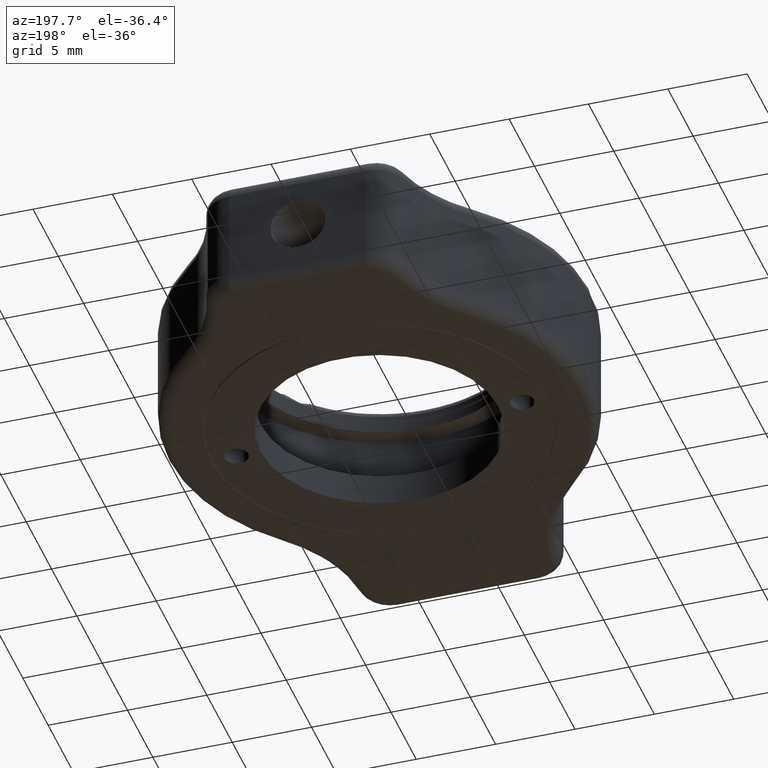
[diagram: clean part render]
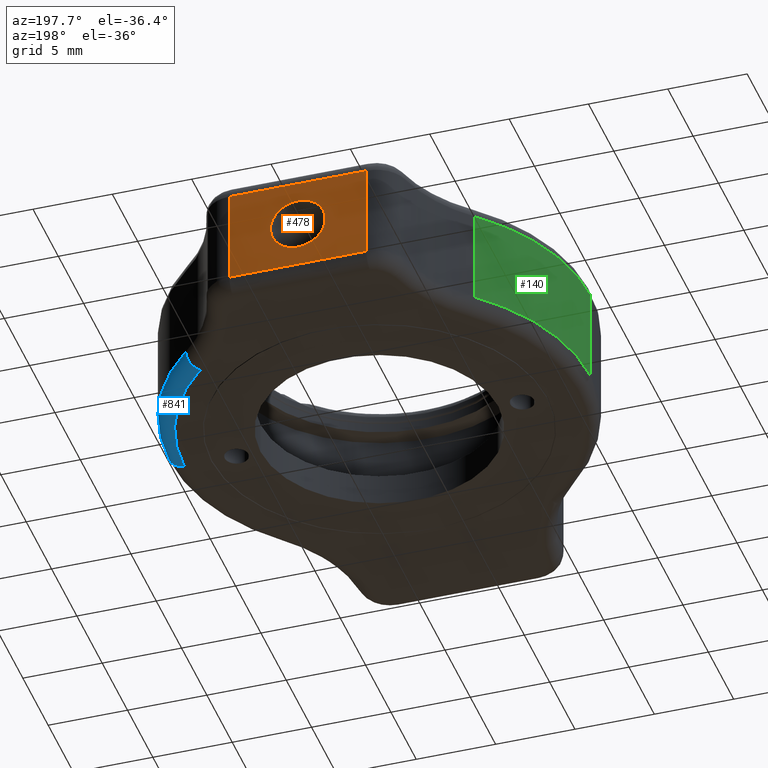
[diagram: same view with three faces highlighted in distinct colors, each labeled with its STEP entity id]
A machine part, auxiliary view with three faces highlighted in distinct colors.
Their STEP definitions:

[orange] entity #478 — the highlighted planar face has unit normal (0, 1, 0).
#18 = ORIENTED_EDGE ( 'NONE', *, *, #835, .T. ) ;
#37 = ORIENTED_EDGE ( 'NONE', *, *, #761, .F. ) ;
#64 = CIRCLE ( 'NONE', #2187, 1.727199999999998100 ) ;
#134 = LINE ( 'NONE', #1105, #2268 ) ;
#135 = CARTESIAN_POINT ( 'NONE',  ( -2.087185713595170800, 17.73337179795378300, 37.00000000000000700 ) ) ;
#171 = LINE ( 'NONE', #1016, #226 ) ;
#175 = DIRECTION ( 'NONE',  ( 0.0000000000000000000, 0.0000000000000000000, 1.000000000000000000 ) ) ;
#226 = VECTOR ( 'NONE', #2249, 1000.000000000000000 ) ;
#264 = DIRECTION ( 'NONE',  ( 0.0000000000000000000, 1.000000000000000000, 0.0000000000000000000 ) ) ;
#295 = CARTESIAN_POINT ( 'NONE',  ( 2.223772548633339100, 17.73337179795378300, 32.27280000000000400 ) ) ;
#345 = DIRECTION ( 'NONE',  ( -0.0000000000000000000, 1.000000000000000000, -0.0000000000000000000 ) ) ;
#478 = ADVANCED_FACE ( 'NONE', ( #592, #1842 ), #1884, .T. ) ;
#484 = CARTESIAN_POINT ( 'NONE',  ( 2.223772548633339100, 17.73337179795378300, 35.72720000000000300 ) ) ;
#542 = VERTEX_POINT ( 'NONE', #135 ) ;
#571 = ORIENTED_EDGE ( 'NONE', *, *, #575, .F. ) ;
#575 = EDGE_CURVE ( 'NONE', #542, #1728, #171, .T. ) ;
#592 = FACE_BOUND ( 'NONE', #1140, .T. ) ;
#641 = LINE ( 'NONE', #1273, #1055 ) ;
#761 = EDGE_CURVE ( 'NONE', #1092, #1988, #64, .T. ) ;
#762 = ORIENTED_EDGE ( 'NONE', *, *, #1751, .T. ) ;
#772 = CARTESIAN_POINT ( 'NONE',  ( 2.223772548633339100, 17.73337179795378300, 34.00000000000000000 ) ) ;
#835 = EDGE_CURVE ( 'NONE', #1907, #2287, #641, .T. ) ;
#969 = LINE ( 'NONE', #2160, #1802 ) ;
#987 = ORIENTED_EDGE ( 'NONE', *, *, #1339, .F. ) ;
#1005 = DIRECTION ( 'NONE',  ( 0.0000000000000000000, -0.0000000000000000000, 1.000000000000000000 ) ) ;
#1016 = CARTESIAN_POINT ( 'NONE',  ( -2.087185713595170800, 17.73337179795378300, 38.00000000000000700 ) ) ;
#1055 = VECTOR ( 'NONE', #1291, 1000.000000000000000 ) ;
#1092 = VERTEX_POINT ( 'NONE', #484 ) ;
#1105 = CARTESIAN_POINT ( 'NONE',  ( 2.223772548633339100, 17.73337179795378300, 37.00000000000000700 ) ) ;
#1140 = EDGE_LOOP ( 'NONE', ( #37, #987 ) ) ;
#1157 = CARTESIAN_POINT ( 'NONE',  ( 2.223772548633339100, 17.73337179795378300, 38.00000000000000700 ) ) ;
#1268 = DIRECTION ( 'NONE',  ( 0.0000000000000000000, 0.0000000000000000000, 1.000000000000000000 ) ) ;
#1273 = CARTESIAN_POINT ( 'NONE',  ( 6.534730810861848500, 17.73337179795378300, 38.00000000000000700 ) ) ;
#1291 = DIRECTION ( 'NONE',  ( -0.0000000000000000000, -0.0000000000000000000, -1.000000000000000000 ) ) ;
#1299 = CARTESIAN_POINT ( 'NONE',  ( -2.087185713595170800, 17.73337179795378300, 31.00000000000000400 ) ) ;
#1303 = CIRCLE ( 'NONE', #2199, 1.727199999999998100 ) ;
#1326 = CARTESIAN_POINT ( 'NONE',  ( 6.534730810861848500, 17.73337179795378300, 37.00000000000000700 ) ) ;
#1339 = EDGE_CURVE ( 'NONE', #1988, #1092, #1303, .T. ) ;
#1408 = CARTESIAN_POINT ( 'NONE',  ( 2.223772548633339100, 17.73337179795378300, 34.00000000000000000 ) ) ;
#1450 = DIRECTION ( 'NONE',  ( -0.0000000000000000000, 1.000000000000000000, -0.0000000000000000000 ) ) ;
#1659 = DIRECTION ( 'NONE',  ( 1.000000000000000000, -0.0000000000000000000, 0.0000000000000000000 ) ) ;
#1728 = VERTEX_POINT ( 'NONE', #1299 ) ;
#1751 = EDGE_CURVE ( 'NONE', #542, #1907, #134, .T. ) ;
#1800 = DIRECTION ( 'NONE',  ( -1.000000000000000000, 0.0000000000000000000, -0.0000000000000000000 ) ) ;
#1802 = VECTOR ( 'NONE', #1800, 1000.000000000000000 ) ;
#1825 = EDGE_LOOP ( 'NONE', ( #18, #1989, #571, #762 ) ) ;
#1831 = CARTESIAN_POINT ( 'NONE',  ( 6.534730810861848500, 17.73337179795378300, 31.00000000000000400 ) ) ;
#1842 = FACE_OUTER_BOUND ( 'NONE', #1825, .T. ) ;
#1884 = PLANE ( 'NONE',  #2129 ) ;
#1907 = VERTEX_POINT ( 'NONE', #1326 ) ;
#1988 = VERTEX_POINT ( 'NONE', #295 ) ;
#1989 = ORIENTED_EDGE ( 'NONE', *, *, #2237, .T. ) ;
#2129 = AXIS2_PLACEMENT_3D ( 'NONE', #1157, #264, #1005 ) ;
#2160 = CARTESIAN_POINT ( 'NONE',  ( -2.087185713595170800, 17.73337179795378300, 31.00000000000000400 ) ) ;
#2187 = AXIS2_PLACEMENT_3D ( 'NONE', #1408, #345, #175 ) ;
#2199 = AXIS2_PLACEMENT_3D ( 'NONE', #772, #1450, #1268 ) ;
#2237 = EDGE_CURVE ( 'NONE', #2287, #1728, #969, .T. ) ;
#2249 = DIRECTION ( 'NONE',  ( -0.0000000000000000000, -0.0000000000000000000, -1.000000000000000000 ) ) ;
#2268 = VECTOR ( 'NONE', #1659, 1000.000000000000000 ) ;
#2287 = VERTEX_POINT ( 'NONE', #1831 ) ;

[blue] entity #841 — the highlighted toroidal blend (fillet) surface has major radius 12.3 mm and minor (blend) radius 1 mm.
#42 = VERTEX_POINT ( 'NONE', #1059 ) ;
#59 = CIRCLE ( 'NONE', #1124, 1.000000000000000200 ) ;
#207 = CARTESIAN_POINT ( 'NONE',  ( 2.223772548633339100, 1.633371797953784300, 31.00000000000000400 ) ) ;
#238 = CARTESIAN_POINT ( 'NONE',  ( 15.52377254863334200, 1.633371797953784300, 31.00000000000000400 ) ) ;
#260 = EDGE_LOOP ( 'NONE', ( #513, #1377, #2051, #1437 ) ) ;
#369 = AXIS2_PLACEMENT_3D ( 'NONE', #1121, #2191, #1150 ) ;
#513 = ORIENTED_EDGE ( 'NONE', *, *, #1394, .F. ) ;
#581 = DIRECTION ( 'NONE',  ( 1.000000000000000000, 0.0000000000000000000, 0.0000000000000000000 ) ) ;
#589 = TOROIDAL_SURFACE ( 'NONE', #1783, 12.30000000000000200, 1.000000000000000000 ) ;
#593 = VERTEX_POINT ( 'NONE', #1733 ) ;
#731 = CARTESIAN_POINT ( 'NONE',  ( 2.223772548633339100, 1.633371797953784300, 30.00000000000000400 ) ) ;
#769 = DIRECTION ( 'NONE',  ( -0.0000000000000000000, 0.0000000000000000000, 1.000000000000000000 ) ) ;
#806 = CIRCLE ( 'NONE', #1932, 13.30000000000000200 ) ;
#811 = FACE_OUTER_BOUND ( 'NONE', #260, .T. ) ;
#841 = ADVANCED_FACE ( 'NONE', ( #811 ), #589, .T. ) ;
#903 = CARTESIAN_POINT ( 'NONE',  ( 11.33498213486267000, 11.32232735961278400, 31.00000000000000400 ) ) ;
#1034 = VERTEX_POINT ( 'NONE', #238 ) ;
#1059 = CARTESIAN_POINT ( 'NONE',  ( 10.64992878251460000, 10.59383446023992400, 30.00000000000000400 ) ) ;
#1121 = CARTESIAN_POINT ( 'NONE',  ( 14.52377254863334100, 1.633371797953784300, 31.00000000000000400 ) ) ;
#1124 = AXIS2_PLACEMENT_3D ( 'NONE', #2020, #1667, #2027 ) ;
#1150 = DIRECTION ( 'NONE',  ( 0.0000000000000000000, 0.0000000000000000000, -1.000000000000000000 ) ) ;
#1251 = VERTEX_POINT ( 'NONE', #903 ) ;
#1255 = DIRECTION ( 'NONE',  ( 1.000000000000000000, 0.0000000000000000000, 0.0000000000000000000 ) ) ;
#1377 = ORIENTED_EDGE ( 'NONE', *, *, #2256, .F. ) ;
#1394 = EDGE_CURVE ( 'NONE', #593, #1034, #1525, .T. ) ;
#1437 = ORIENTED_EDGE ( 'NONE', *, *, #1711, .F. ) ;
#1457 = CARTESIAN_POINT ( 'NONE',  ( 2.223772548633339100, 1.633371797953784300, 31.00000000000000400 ) ) ;
#1525 = CIRCLE ( 'NONE', #369, 1.000000000000000900 ) ;
#1667 = DIRECTION ( 'NONE',  ( -0.7284928993728562200, 0.6850533523480704100, -2.376756265229618000E-015 ) ) ;
#1711 = EDGE_CURVE ( 'NONE', #1034, #1251, #806, .T. ) ;
#1733 = CARTESIAN_POINT ( 'NONE',  ( 14.52377254863334100, 1.633371797953784300, 30.00000000000000400 ) ) ;
#1783 = AXIS2_PLACEMENT_3D ( 'NONE', #1457, #769, #1255 ) ;
#1789 = AXIS2_PLACEMENT_3D ( 'NONE', #731, #1979, #2153 ) ;
#1855 = EDGE_CURVE ( 'NONE', #1251, #42, #59, .T. ) ;
#1932 = AXIS2_PLACEMENT_3D ( 'NONE', #207, #2157, #581 ) ;
#1979 = DIRECTION ( 'NONE',  ( 0.0000000000000000000, -0.0000000000000000000, -1.000000000000000000 ) ) ;
#2020 = CARTESIAN_POINT ( 'NONE',  ( 10.64992878251460000, 10.59383446023992700, 31.00000000000000400 ) ) ;
#2027 = DIRECTION ( 'NONE',  ( -0.6850533523480704100, -0.7284928993728563300, 0.0000000000000000000 ) ) ;
#2051 = ORIENTED_EDGE ( 'NONE', *, *, #1855, .F. ) ;
#2153 = DIRECTION ( 'NONE',  ( 1.000000000000000000, 0.0000000000000000000, 0.0000000000000000000 ) ) ;
#2157 = DIRECTION ( 'NONE',  ( -0.0000000000000000000, 0.0000000000000000000, 1.000000000000000000 ) ) ;
#2161 = CIRCLE ( 'NONE', #1789, 12.30000000000000200 ) ;
#2191 = DIRECTION ( 'NONE',  ( 0.0000000000000000000, -1.000000000000000000, 0.0000000000000000000 ) ) ;
#2256 = EDGE_CURVE ( 'NONE', #42, #593, #2161, .T. ) ;

[green] entity #140 — the highlighted cylindrical surface (partial cylindrical patch) has radius 13.3 mm, axis along (-0, -0, -1).
#4 = AXIS2_PLACEMENT_3D ( 'NONE', #1991, #760, #923 ) ;
#52 = EDGE_CURVE ( 'NONE', #1796, #152, #1452, .T. ) ;
#85 = CARTESIAN_POINT ( 'NONE',  ( -11.07622745136666300, 1.633371797953784300, 38.00000000000000700 ) ) ;
#140 = ADVANCED_FACE ( 'NONE', ( #1006 ), #642, .T. ) ;
#152 = VERTEX_POINT ( 'NONE', #739 ) ;
#154 = EDGE_LOOP ( 'NONE', ( #818, #1764, #1375, #1517 ) ) ;
#215 = CARTESIAN_POINT ( 'NONE',  ( -6.887437037595987000, 11.32232735961278500, 37.00000000000000700 ) ) ;
#230 = CARTESIAN_POINT ( 'NONE',  ( -11.07622745136666300, 1.633371797953784300, 31.00000000000000400 ) ) ;
#336 = CARTESIAN_POINT ( 'NONE',  ( -6.887437037595987000, 11.32232735961278500, 38.00000000000000700 ) ) ;
#642 = CYLINDRICAL_SURFACE ( 'NONE', #2284, 13.30000000000000100 ) ;
#689 = VECTOR ( 'NONE', #2048, 1000.000000000000000 ) ;
#739 = CARTESIAN_POINT ( 'NONE',  ( -6.887437037595987000, 11.32232735961278500, 31.00000000000000400 ) ) ;
#760 = DIRECTION ( 'NONE',  ( -0.0000000000000000000, 0.0000000000000000000, 1.000000000000000000 ) ) ;
#792 = EDGE_CURVE ( 'NONE', #152, #1346, #1217, .T. ) ;
#818 = ORIENTED_EDGE ( 'NONE', *, *, #1431, .F. ) ;
#881 = DIRECTION ( 'NONE',  ( -0.0000000000000000000, -0.0000000000000000000, -1.000000000000000000 ) ) ;
#904 = CARTESIAN_POINT ( 'NONE',  ( 2.223772548633339100, 1.633371797953784300, 38.00000000000000700 ) ) ;
#923 = DIRECTION ( 'NONE',  ( 1.000000000000000000, 0.0000000000000000000, 0.0000000000000000000 ) ) ;
#1006 = FACE_OUTER_BOUND ( 'NONE', #154, .T. ) ;
#1082 = DIRECTION ( 'NONE',  ( -0.0000000000000000000, -0.0000000000000000000, -1.000000000000000000 ) ) ;
#1096 = AXIS2_PLACEMENT_3D ( 'NONE', #1526, #1163, #1214 ) ;
#1097 = CARTESIAN_POINT ( 'NONE',  ( -11.07622745136666300, 1.633371797953784300, 37.00000000000000700 ) ) ;
#1163 = DIRECTION ( 'NONE',  ( 0.0000000000000000000, -0.0000000000000000000, -1.000000000000000000 ) ) ;
#1214 = DIRECTION ( 'NONE',  ( 1.000000000000000000, 0.0000000000000000000, 0.0000000000000000000 ) ) ;
#1217 = CIRCLE ( 'NONE', #4, 13.30000000000000100 ) ;
#1315 = VECTOR ( 'NONE', #881, 1000.000000000000000 ) ;
#1346 = VERTEX_POINT ( 'NONE', #230 ) ;
#1375 = ORIENTED_EDGE ( 'NONE', *, *, #52, .T. ) ;
#1431 = EDGE_CURVE ( 'NONE', #1826, #1346, #1669, .T. ) ;
#1452 = LINE ( 'NONE', #336, #1315 ) ;
#1517 = ORIENTED_EDGE ( 'NONE', *, *, #792, .T. ) ;
#1526 = CARTESIAN_POINT ( 'NONE',  ( 2.223772548633339100, 1.633371797953784300, 37.00000000000000700 ) ) ;
#1548 = EDGE_CURVE ( 'NONE', #1826, #1796, #2085, .T. ) ;
#1669 = LINE ( 'NONE', #85, #689 ) ;
#1764 = ORIENTED_EDGE ( 'NONE', *, *, #1548, .T. ) ;
#1796 = VERTEX_POINT ( 'NONE', #215 ) ;
#1819 = DIRECTION ( 'NONE',  ( -1.000000000000000000, 0.0000000000000000000, 0.0000000000000000000 ) ) ;
#1826 = VERTEX_POINT ( 'NONE', #1097 ) ;
#1991 = CARTESIAN_POINT ( 'NONE',  ( 2.223772548633339100, 1.633371797953784300, 31.00000000000000400 ) ) ;
#2048 = DIRECTION ( 'NONE',  ( -0.0000000000000000000, -0.0000000000000000000, -1.000000000000000000 ) ) ;
#2085 = CIRCLE ( 'NONE', #1096, 13.30000000000000100 ) ;
#2284 = AXIS2_PLACEMENT_3D ( 'NONE', #904, #1082, #1819 ) ;